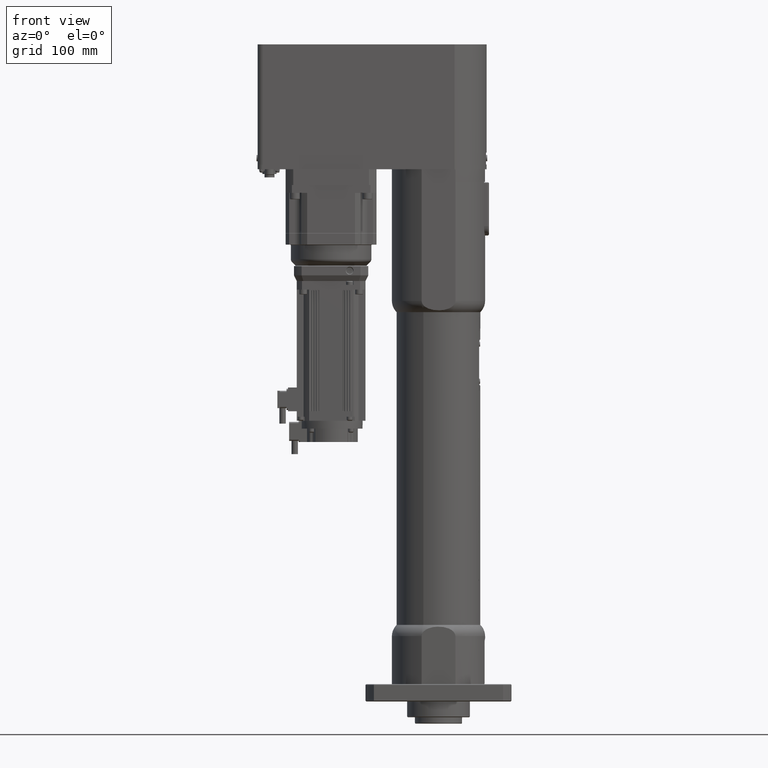
[diagram: clean part render]
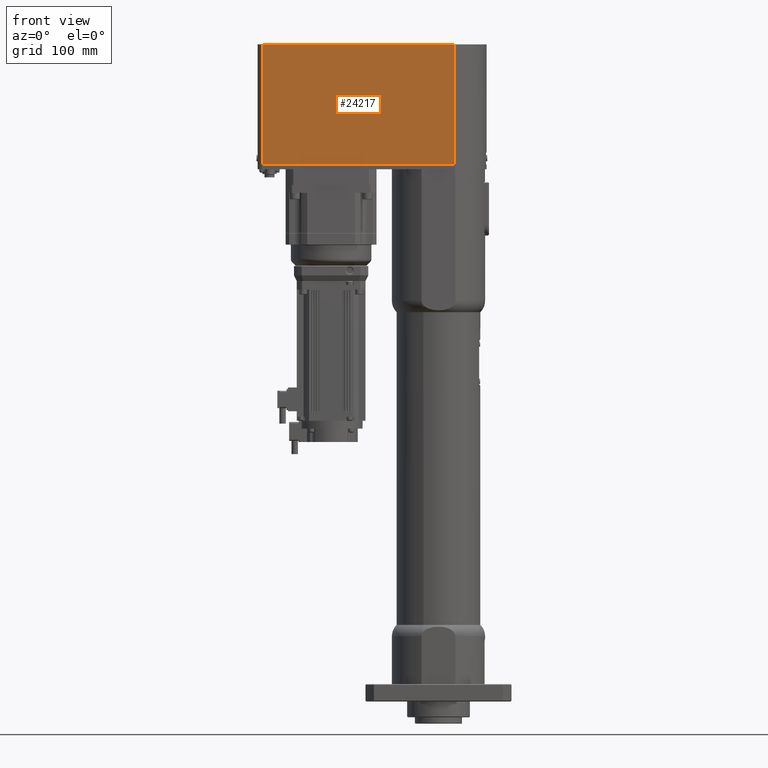
[diagram: same view with one face highlighted and labeled with its STEP entity id]
A machine part, front view. The second image highlights one B-rep face of the part: STEP entity #24217.
In plain terms, the highlighted planar face has unit normal (-0, -1, -0).
Its self-contained STEP definition (entity closure, byte-faithful):
#849=LINE('',#36992,#2688);
#852=LINE('',#37005,#2691);
#853=LINE('',#37006,#2692);
#854=LINE('',#37007,#2693);
#2688=VECTOR('',#29271,10.);
#2691=VECTOR('',#29282,10.);
#2692=VECTOR('',#29283,10.);
#2693=VECTOR('',#29284,10.);
#4453=PLANE('',#25978);
#5699=FACE_OUTER_BOUND('',#7161,.T.);
#7161=EDGE_LOOP('',(#16392,#16393,#16394,#16395));
#10285=VERTEX_POINT('',#36990);
#10286=VERTEX_POINT('',#36991);
#10291=VERTEX_POINT('',#37003);
#10292=VERTEX_POINT('',#37004);
#12676=EDGE_CURVE('',#10285,#10286,#849,.T.);
#12682=EDGE_CURVE('',#10291,#10292,#852,.T.);
#12683=EDGE_CURVE('',#10292,#10286,#853,.T.);
#12684=EDGE_CURVE('',#10291,#10285,#854,.T.);
#16392=ORIENTED_EDGE('',*,*,#12682,.T.);
#16393=ORIENTED_EDGE('',*,*,#12683,.T.);
#16394=ORIENTED_EDGE('',*,*,#12676,.F.);
#16395=ORIENTED_EDGE('',*,*,#12684,.F.);
#24217=ADVANCED_FACE('',(#5699),#4453,.T.);
#25978=AXIS2_PLACEMENT_3D('',#37002,#29280,#29281);
#29271=DIRECTION('',(1.,-1.97625249498402E-12,-3.1961401072142E-15));
#29280=DIRECTION('center_axis',(-1.97625249498402E-12,-1.,-3.42858670931682E-28));
#29281=DIRECTION('ref_axis',(1.,-1.97601934814884E-12,0.));
#29282=DIRECTION('',(1.,-1.97625249498402E-12,-3.1961401072142E-15));
#29283=DIRECTION('',(3.1961401072142E-15,-6.65916933142317E-27,1.));
#29284=DIRECTION('',(3.1961401072142E-15,-6.65916933142317E-27,1.));
#36990=CARTESIAN_POINT('',(-222.400000000106,-57.4999999994427,832.000000000005));
#36991=CARTESIAN_POINT('',(20.3654118543133,-57.4999999999224,832.000000000004));
#36992=CARTESIAN_POINT('',(-222.400000000106,-57.4999999994427,832.000000000005));
#37002=CARTESIAN_POINT('Origin',(-222.400000000107,-57.4999999994427,680.000000000005));
#37003=CARTESIAN_POINT('',(-222.400000000107,-57.4999999994427,680.000000000005));
#37004=CARTESIAN_POINT('',(20.3654118543128,-57.4999999999224,680.000000000004));
#37005=CARTESIAN_POINT('',(-222.400000000107,-57.4999999994427,680.000000000005));
#37006=CARTESIAN_POINT('',(20.3654118543128,-57.4999999999224,680.000000000004));
#37007=CARTESIAN_POINT('',(-222.400000000107,-57.4999999994427,680.000000000005));